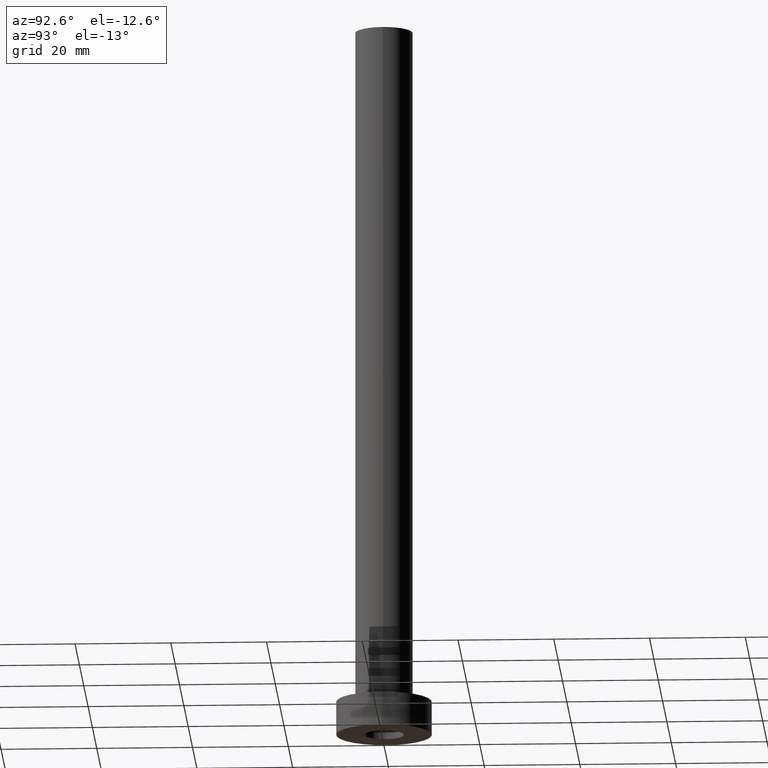
[diagram: clean part render]
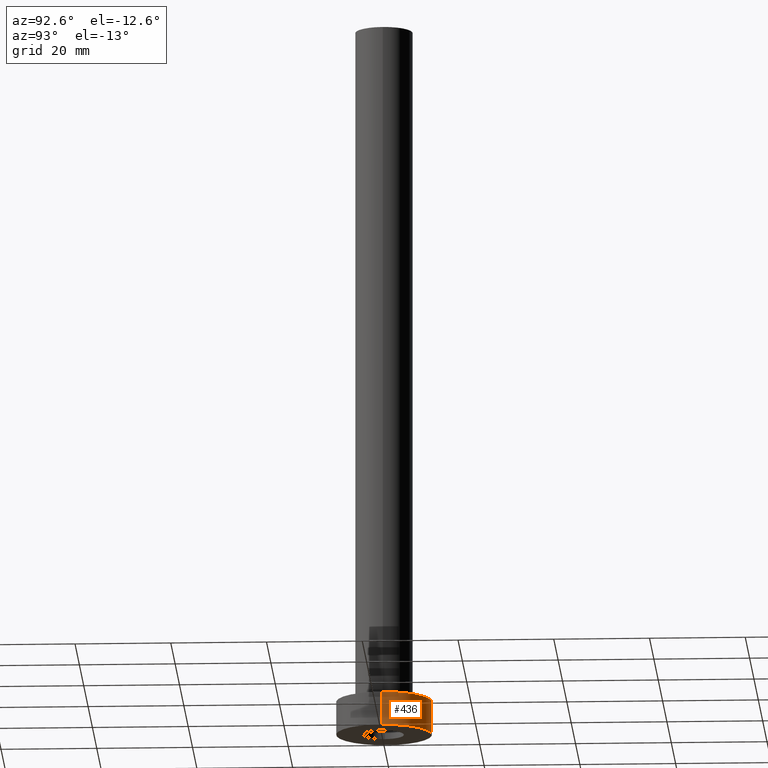
[diagram: same view with one face highlighted and labeled with its STEP entity id]
A machine part, auxiliary view. The second image highlights one B-rep face of the part: STEP entity #436.
In plain terms, the highlighted cylindrical surface (partial cylindrical patch) has radius 10 mm, axis along (-0, -0, -1).
Its self-contained STEP definition (entity closure, byte-faithful):
#50 = CYLINDRICAL_SURFACE ( 'NONE', #158, 10.00000000000000000 ) ;
#67 = ORIENTED_EDGE ( 'NONE', *, *, #361, .F. ) ;
#69 = VERTEX_POINT ( 'NONE', #229 ) ;
#73 = EDGE_LOOP ( 'NONE', ( #67, #411, #428, #312 ) ) ;
#80 = VECTOR ( 'NONE', #200, 1000.000000000000000 ) ;
#97 = CARTESIAN_POINT ( 'NONE',  ( -10.00000000000000000, 0.000000000000000000, 7.000000000000000000 ) ) ;
#121 = DIRECTION ( 'NONE',  ( 1.000000000000000000, 0.000000000000000000, 0.000000000000000000 ) ) ;
#136 = DIRECTION ( 'NONE',  ( -0.000000000000000000, -0.000000000000000000, -1.000000000000000000 ) ) ;
#152 = CARTESIAN_POINT ( 'NONE',  ( 10.00000000000000000, 1.224646799147353256E-15, 0.000000000000000000 ) ) ;
#158 = AXIS2_PLACEMENT_3D ( 'NONE', #209, #136, #274 ) ;
#159 = CARTESIAN_POINT ( 'NONE',  ( -10.00000000000000000, 0.000000000000000000, 0.000000000000000000 ) ) ;
#172 = EDGE_CURVE ( 'NONE', #69, #267, #265, .T. ) ;
#192 = EDGE_CURVE ( 'NONE', #253, #381, #343, .T. ) ;
#200 = DIRECTION ( 'NONE',  ( -0.000000000000000000, -0.000000000000000000, -1.000000000000000000 ) ) ;
#209 = CARTESIAN_POINT ( 'NONE',  ( 0.000000000000000000, 0.000000000000000000, 7.000000000000000000 ) ) ;
#221 = CARTESIAN_POINT ( 'NONE',  ( 0.000000000000000000, 0.000000000000000000, 7.000000000000000000 ) ) ;
#229 = CARTESIAN_POINT ( 'NONE',  ( -10.00000000000000000, 0.000000000000000000, 7.000000000000000000 ) ) ;
#243 = FACE_OUTER_BOUND ( 'NONE', #73, .T. ) ;
#251 = CARTESIAN_POINT ( 'NONE',  ( 10.00000000000000000, 1.224646799147353256E-15, 7.000000000000000000 ) ) ;
#253 = VERTEX_POINT ( 'NONE', #289 ) ;
#265 = LINE ( 'NONE', #97, #80 ) ;
#267 = VERTEX_POINT ( 'NONE', #159 ) ;
#274 = DIRECTION ( 'NONE',  ( -1.000000000000000000, 0.000000000000000000, 0.000000000000000000 ) ) ;
#289 = CARTESIAN_POINT ( 'NONE',  ( 10.00000000000000000, 1.224646799147353256E-15, 7.000000000000000000 ) ) ;
#296 = CARTESIAN_POINT ( 'NONE',  ( 0.000000000000000000, 0.000000000000000000, 0.000000000000000000 ) ) ;
#300 = AXIS2_PLACEMENT_3D ( 'NONE', #296, #447, #121 ) ;
#310 = CIRCLE ( 'NONE', #339, 10.00000000000000000 ) ;
#312 = ORIENTED_EDGE ( 'NONE', *, *, #172, .F. ) ;
#339 = AXIS2_PLACEMENT_3D ( 'NONE', #221, #408, #437 ) ;
#343 = LINE ( 'NONE', #251, #362 ) ;
#361 = EDGE_CURVE ( 'NONE', #253, #69, #310, .T. ) ;
#362 = VECTOR ( 'NONE', #393, 1000.000000000000000 ) ;
#381 = VERTEX_POINT ( 'NONE', #152 ) ;
#392 = CIRCLE ( 'NONE', #300, 10.00000000000000000 ) ;
#393 = DIRECTION ( 'NONE',  ( -0.000000000000000000, -0.000000000000000000, -1.000000000000000000 ) ) ;
#408 = DIRECTION ( 'NONE',  ( 0.000000000000000000, 0.000000000000000000, 1.000000000000000000 ) ) ;
#411 = ORIENTED_EDGE ( 'NONE', *, *, #192, .T. ) ;
#426 = EDGE_CURVE ( 'NONE', #381, #267, #392, .T. ) ;
#428 = ORIENTED_EDGE ( 'NONE', *, *, #426, .T. ) ;
#436 = ADVANCED_FACE ( 'NONE', ( #243 ), #50, .T. ) ;
#437 = DIRECTION ( 'NONE',  ( 1.000000000000000000, 0.000000000000000000, 0.000000000000000000 ) ) ;
#447 = DIRECTION ( 'NONE',  ( 0.000000000000000000, 0.000000000000000000, 1.000000000000000000 ) ) ;